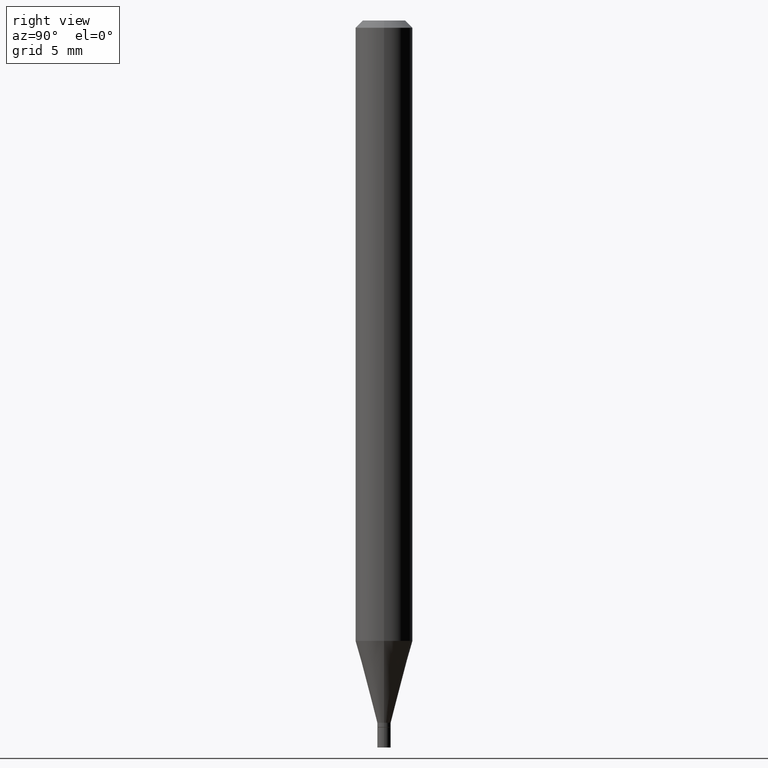
[diagram: clean part render]
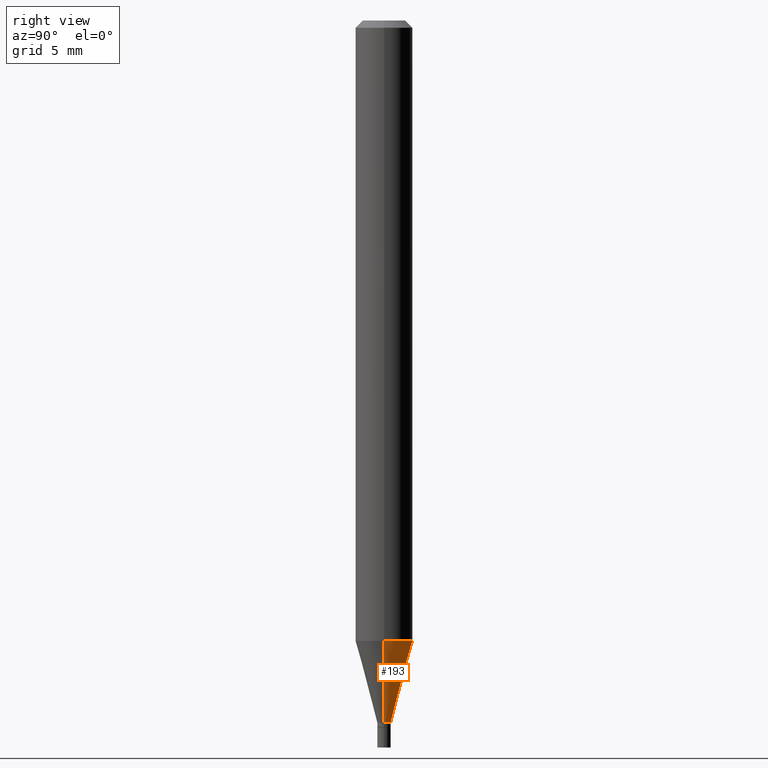
[diagram: same view with one face highlighted and labeled with its STEP entity id]
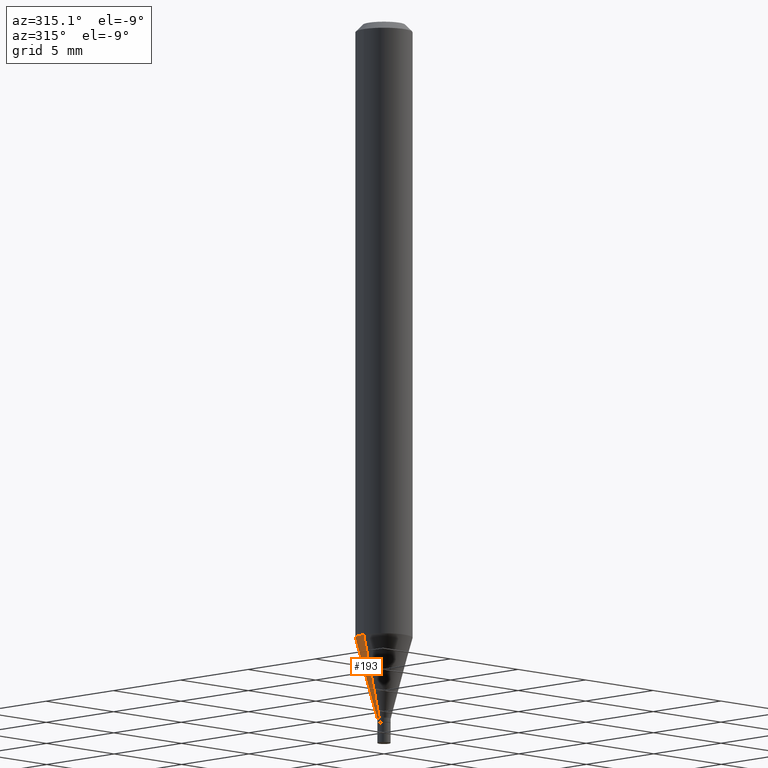
[diagram: same view with one face highlighted and labeled with its STEP entity id]
A machine part, right view. The second image highlights one B-rep face of the part: STEP entity #193.
A second angle (auxiliary view) of the same face is appended — the face is thin or edge-on in the first view.
In plain terms, the highlighted conical surface has half-angle 15 deg.
Its self-contained STEP definition (entity closure, byte-faithful):
#22 = CARTESIAN_POINT ( 'NONE',  ( 3.543484300162263247E-29, -5.059156459983718502E-15, -1.449000000000000066 ) ) ;
#61 = DIRECTION ( 'NONE',  ( -0.2588190451025214611, 5.211531920934551042E-15, 0.9659258262890682012 ) ) ;
#78 = EDGE_CURVE ( 'NONE', #345, #376, #226, .T. ) ;
#85 = AXIS2_PLACEMENT_3D ( 'NONE', #98, #210, #363 ) ;
#98 = CARTESIAN_POINT ( 'NONE',  ( 3.543484300162263247E-29, -5.059156459983718502E-15, -1.449000000000000066 ) ) ;
#103 = EDGE_LOOP ( 'NONE', ( #383, #281, #424, #184 ) ) ;
#113 = EDGE_CURVE ( 'NONE', #376, #308, #326, .T. ) ;
#136 = CARTESIAN_POINT ( 'NONE',  ( 0.05904999999999999832, -4.881875450902681297E-15, -1.280124700957509631 ) ) ;
#147 = CARTESIAN_POINT ( 'NONE',  ( 0.01380000000000019406, -5.155521344935790232E-15, -1.449000000000000066 ) ) ;
#164 = AXIS2_PLACEMENT_3D ( 'NONE', #170, #332, #297 ) ;
#170 = CARTESIAN_POINT ( 'NONE',  ( 3.130505024218666206E-29, -4.469531504785306377E-15, -1.280124700957509631 ) ) ;
#180 = CARTESIAN_POINT ( 'NONE',  ( -0.01380000000000019406, -4.961101562448823642E-15, -1.449000000000000066 ) ) ;
#183 = DIRECTION ( 'NONE',  ( 0.2588190451025214611, 1.565188264969621573E-15, 0.9659258262890682012 ) ) ;
#184 = ORIENTED_EDGE ( 'NONE', *, *, #271, .F. ) ;
#191 = LINE ( 'NONE', #280, #272 ) ;
#193 = ADVANCED_FACE ( 'NONE', ( #235 ), #347, .T. ) ;
#202 = EDGE_CURVE ( 'NONE', #218, #308, #365, .T. ) ;
#204 = VECTOR ( 'NONE', #61, 39.37007874015747433 ) ;
#210 = DIRECTION ( 'NONE',  ( -2.445468806185136597E-29, 3.491481338843145583E-15, 1.000000000000000000 ) ) ;
#217 = CARTESIAN_POINT ( 'NONE',  ( -0.05904999999999999832, -4.049956019318968462E-15, -1.280124700957509631 ) ) ;
#218 = VERTEX_POINT ( 'NONE', #136 ) ;
#226 = CIRCLE ( 'NONE', #85, 0.01380000000000019406 ) ;
#232 = DIRECTION ( 'NONE',  ( 1.000000000000000000, -6.982962677686276966E-15, 0.000000000000000000 ) ) ;
#235 = FACE_OUTER_BOUND ( 'NONE', #103, .T. ) ;
#271 = EDGE_CURVE ( 'NONE', #345, #218, #191, .T. ) ;
#272 = VECTOR ( 'NONE', #183, 39.37007874015747433 ) ;
#280 = CARTESIAN_POINT ( 'NONE',  ( 0.01380000000000019406, -5.155521344935790232E-15, -1.449000000000000066 ) ) ;
#281 = ORIENTED_EDGE ( 'NONE', *, *, #113, .T. ) ;
#297 = DIRECTION ( 'NONE',  ( 1.000000000000000000, -6.982962677686273021E-15, 0.000000000000000000 ) ) ;
#303 = DIRECTION ( 'NONE',  ( -2.445468806185136597E-29, 3.491481338843145583E-15, 1.000000000000000000 ) ) ;
#308 = VERTEX_POINT ( 'NONE', #217 ) ;
#326 = LINE ( 'NONE', #180, #204 ) ;
#332 = DIRECTION ( 'NONE',  ( -2.445468806185136597E-29, 3.491481338843145583E-15, 1.000000000000000000 ) ) ;
#345 = VERTEX_POINT ( 'NONE', #147 ) ;
#347 = CONICAL_SURFACE ( 'NONE', #441, 0.01380000000000019406, 0.2617993877991501295 ) ;
#363 = DIRECTION ( 'NONE',  ( 1.000000000000000000, -6.982962677686276966E-15, 0.000000000000000000 ) ) ;
#365 = CIRCLE ( 'NONE', #164, 0.05904999999999999832 ) ;
#376 = VERTEX_POINT ( 'NONE', #462 ) ;
#383 = ORIENTED_EDGE ( 'NONE', *, *, #78, .T. ) ;
#424 = ORIENTED_EDGE ( 'NONE', *, *, #202, .F. ) ;
#441 = AXIS2_PLACEMENT_3D ( 'NONE', #22, #303, #232 ) ;
#462 = CARTESIAN_POINT ( 'NONE',  ( -0.01380000000000019406, -4.505528790883896446E-15, -1.449000000000000066 ) ) ;